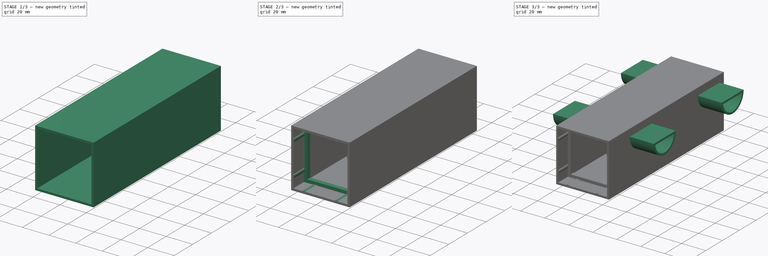
[diagram: build sequence overview — one tinted view per stage of 3, left to right]
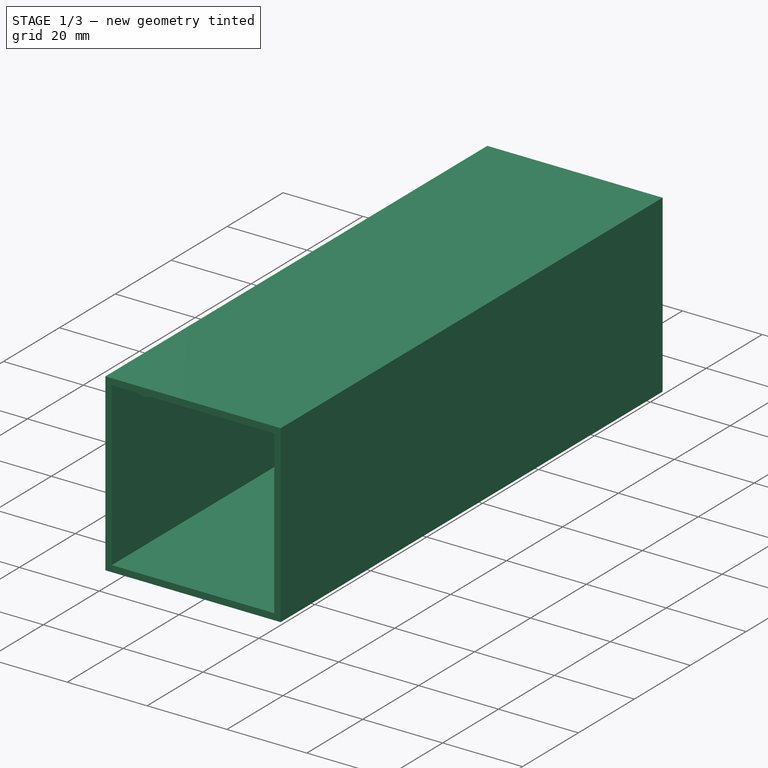
[diagram: stage 1 of 3 — iso view after this stage's code; geometry added in this stage tinted green]
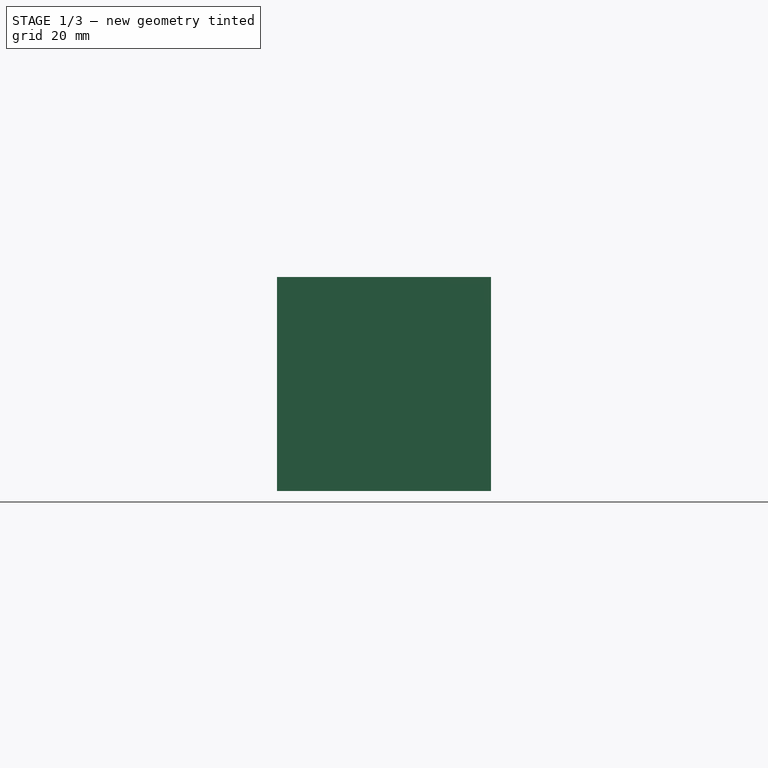
[diagram: stage 1 of 3 — front view after this stage's code; geometry added in this stage tinted green]
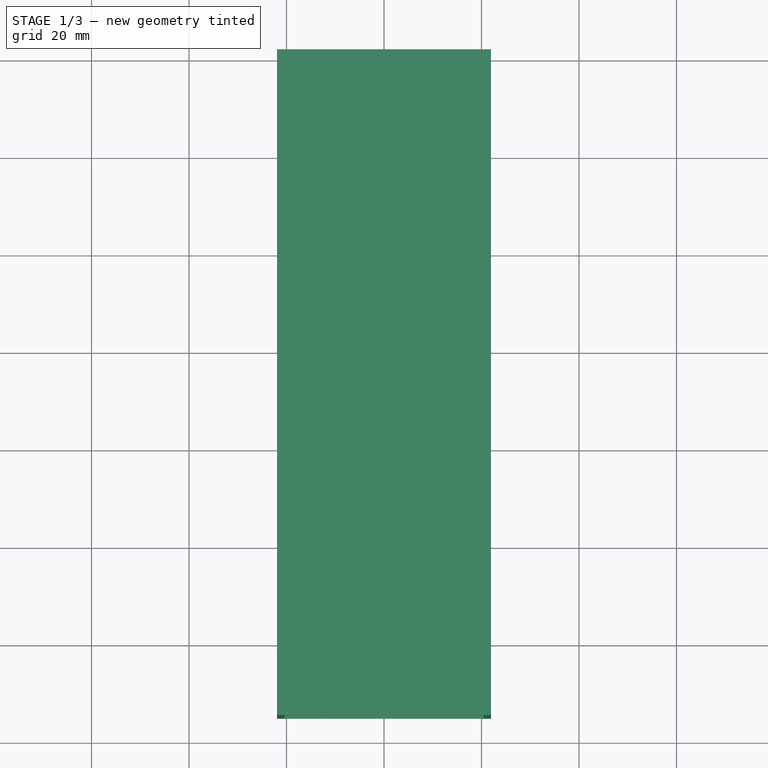
[diagram: stage 1 of 3 — top view after this stage's code; geometry added in this stage tinted green]
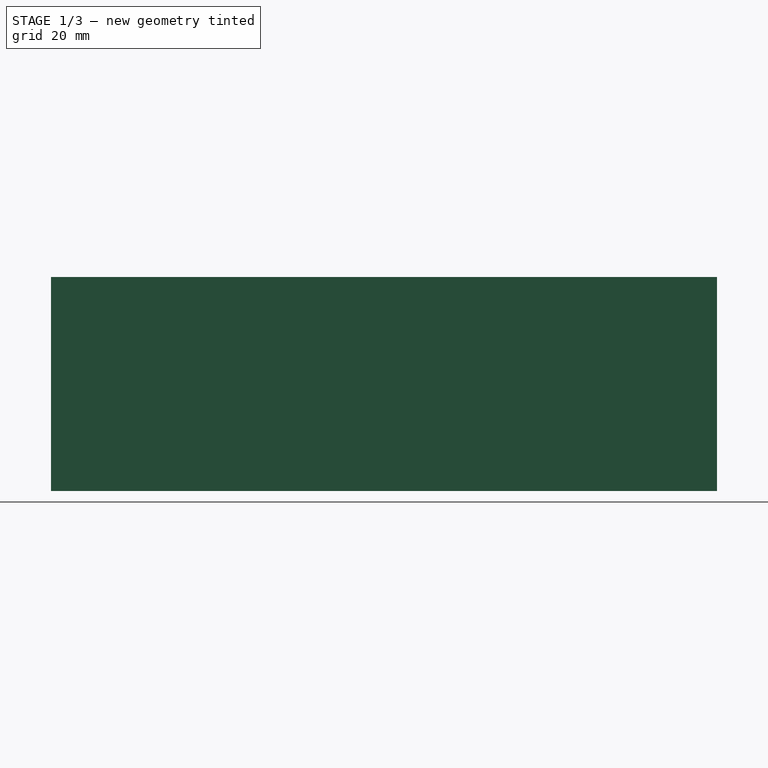
[diagram: stage 1 of 3 — right view after this stage's code; geometry added in this stage tinted green]
FCSTD DOCUMENT  (FreeCAD 1.0R39285 (Git))
Label: bottle_dryer
License: All rights reserved
LicenseURL: https://en.wikipedia.org/wiki/All_rights_reserved
objects: Sketcher::SketchObject×6, PartDesign::Pad×5, PartDesign::Mirrored×2, PartDesign::MultiTransform×2, App::VarSet×1, PartDesign::PolarPattern×1, PartDesign::Pocket×1, PartDesign::LinearPattern×1, PartDesign::Body×1
note: 43 computed .brp shape members not serialized (recipe doc carries the construction recipe); baked Part::Feature solids carry a one-line shape summary decoded from their .brp

FEATURE [Sketcher::SketchObject] Sketch
  ArcFitTolerance = 1e-06
  AttachmentSupport = -> [XZ_Plane]
  FullyConstrained = true
  MakeInternals = false
  MapMode = 5
  Placement = pos=(0,0,0) rot=(1,0,0;1.5708rad)
  expr: Constraints[17] = VarSet.fan_width
  expr: Constraints[19] = VarSet.wall_thickness
  expr: Constraints[20] = VarSet.wall_thickness
  sketch-geometry (8):
    g0: LineSegment StartX=-20.35 StartY=20.35 StartZ=0 EndX=-20.35 EndY=-20.35 EndZ=0
    g1: LineSegment StartX=-20.35 StartY=-20.35 StartZ=0 EndX=20.35 EndY=-20.35 EndZ=0
    g2: LineSegment StartX=20.35 StartY=-20.35 StartZ=0 EndX=20.35 EndY=20.35 EndZ=0
    g3: LineSegment StartX=20.35 StartY=20.35 StartZ=0 EndX=-20.35 EndY=20.35 EndZ=0
    g4: LineSegment StartX=-21.95 StartY=21.95 StartZ=0 EndX=-21.95 EndY=-21.95 EndZ=0
    g5: LineSegment StartX=-21.95 StartY=-21.95 StartZ=0 EndX=21.95 EndY=-21.95 EndZ=0
    g6: LineSegment StartX=21.95 StartY=-21.95 StartZ=0 EndX=21.95 EndY=21.95 EndZ=0
    g7: LineSegment StartX=21.95 StartY=21.95 StartZ=0 EndX=-21.95 EndY=21.95 EndZ=0
  constraints (22):
    c: Coincident(g0,g1)
    c: Coincident(g1,g2)
    c: Coincident(g2,g3)
    c: Coincident(g3,g0)
    c: Vertical(g0)
    c: Vertical(g2)
    c: Horizontal(g1)
    c: Horizontal(g3)
    c: Coincident(g4,g5)
    c: Coincident(g5,g6)
    c: Coincident(g6,g7)
    c: Coincident(g7,g4)
    c: Vertical(g4)
    c: Vertical(g6)
    c: Horizontal(g5)
    c: Horizontal(g7)
    c: Symmetric(g0,g1,g-1)
    c: DistanceX(g3,g3) = 40.7
    c: Equal(g3,g0)
    c: DistanceY(g0,g4) = 1.6
    c: DistanceX(g4,g0) = 1.6
    c: Symmetric(g4,g5,g-1)
FEATURE [App::VarSet] VarSet
  body_length = 135
  bottle_neck_id = 28
  bottle_outer_diameter = 75.692
  bump_amount = 0.5
  bump_pct_from_center = 60
  fan_clearance = 0.2
  fan_thickness = 11.5
  fan_width = 40.7
  fan_width_real = 40
  sm_nozzle_length = 20
  wall_thickness = 1.6
  expr: fan_width = fan_width_real + bump_amount + fan_clearance
FEATURE [PartDesign::Pad] Pad
  Direction = (0,-1,2e-16)
  Length = 135
  Length2 = 10
  Placement = pos=(0,0,0) rot=(1,0,0;1.5708rad)
  Profile = -> Sketch
  ReferenceAxis = -> Sketch [N_Axis]
  Refine = true
  Suppressed = false
  Type = 0
  expr: Length = VarSet.body_length
FEATURE [Sketcher::SketchObject] Sketch001
  ArcFitTolerance = 1e-06
  AttachmentSupport = -> [XZ_Plane]
  FullyConstrained = true
  MakeInternals = false
  MapMode = 5
  Placement = pos=(0,0,0) rot=(1,0,0;1.5708rad)
  expr: Constraints[10] = VarSet.wall_thickness * 2 + VarSet.fan_width
  sketch-geometry (4):
    g0: LineSegment StartX=-21.95 StartY=21.95 StartZ=0 EndX=-21.95 EndY=-21.95 EndZ=0
    g1: LineSegment StartX=-21.95 StartY=-21.95 StartZ=0 EndX=21.95 EndY=-21.95 EndZ=0
    g2: LineSegment StartX=21.95 StartY=-21.95 StartZ=0 EndX=21.95 EndY=21.95 EndZ=0
    g3: LineSegment StartX=21.95 StartY=21.95 StartZ=0 EndX=-21.95 EndY=21.95 EndZ=0
  constraints (11):
    c: Coincident(g0,g1)
    c: Coincident(g1,g2)
    c: Coincident(g2,g3)
    c: Coincident(g3,g0)
    c: Vertical(g0)
    c: Vertical(g2)
    c: Horizontal(g1)
    c: Horizontal(g3)
    c: Symmetric(g0,g1,g-1)
    c: Equal(g3,g0)
    c: DistanceX(g3,g3) = 43.9
FEATURE [PartDesign::Pad] Pad001
  BaseFeature = -> Pad
  Direction = (0,-1,2e-16)
  Length = 1.6
  Length2 = 10
  Placement = pos=(0,0,0) rot=(1,0,0;1.5708rad)
  Profile = -> Sketch001
  ReferenceAxis = -> Sketch001 [N_Axis]
  Refine = true
  Reversed = true
  Suppressed = false
  Type = 0
  expr: Length = VarSet.wall_thickness
FEATURE [Sketcher::SketchObject] Sketch002
  ArcFitTolerance = 1e-06
  AttachmentOffset = pos=(0,0,135) rot=(0,0,1;0rad)
  AttachmentSupport = -> [XZ_Plane]
  FullyConstrained = true
  MakeInternals = false
  MapMode = 5
  Placement = pos=(0,-135,3e-14) rot=(1,0,0;1.5708rad)
  expr: .AttachmentOffset.Base.z = VarSet.body_length
  expr: Constraints[1] = VarSet.fan_width / 2 * VarSet.bump_pct_from_center / 100
  expr: Constraints[2] = VarSet.wall_thickness + VarSet.bump_amount
  expr: Constraints[3] = VarSet.wall_thickness + VarSet.fan_width / 2
  sketch-geometry (2):
    g0: ArcOfCircle CenterX=-12.21 CenterY=21.95 CenterZ=0 NormalX=0 NormalY=0 NormalZ=1 AngleXU=0 Radius=2.1 StartAngle=3.14159 EndAngle=6.28319
    g1: LineSegment StartX=-14.31 StartY=21.95 StartZ=0 EndX=-10.11 EndY=21.95 EndZ=0
  constraints (7):
    c: Angle(g0) = 3.14159
    c: DistanceX(g0,g-1) = 12.21
    c: Radius(g0) = 2.1
    c: DistanceY(g-1,g0) = 21.95
    c: Horizontal(g0,g0)
    c: Coincident(g1,g0)
    c: Coincident(g1,g0)
FEATURE [PartDesign::Pad] Pad002
  BaseFeature = -> Pad001
  Direction = (0,-1,2e-16)
  Length = 11.5
  Length2 = 10
  Placement = pos=(0,0,0) rot=(1,0,0;1.5708rad)
  Profile = -> Sketch002
  ReferenceAxis = -> Sketch002 [N_Axis]
  Refine = true
  Reversed = true
  Suppressed = false
  Type = 0
  expr: Length = VarSet.fan_thickness
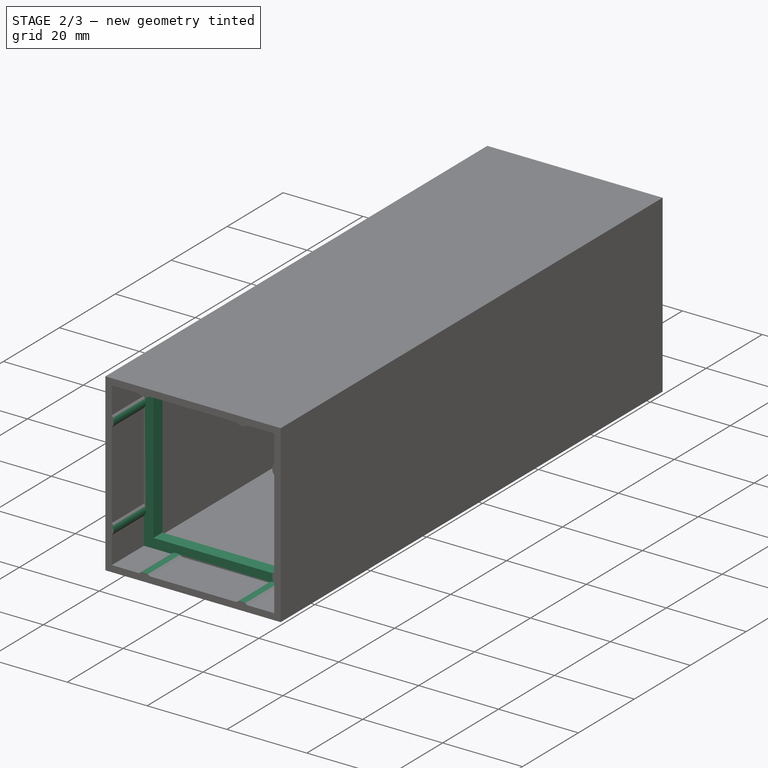
[diagram: stage 2 of 3 — iso view after this stage's code; geometry added in this stage tinted green]
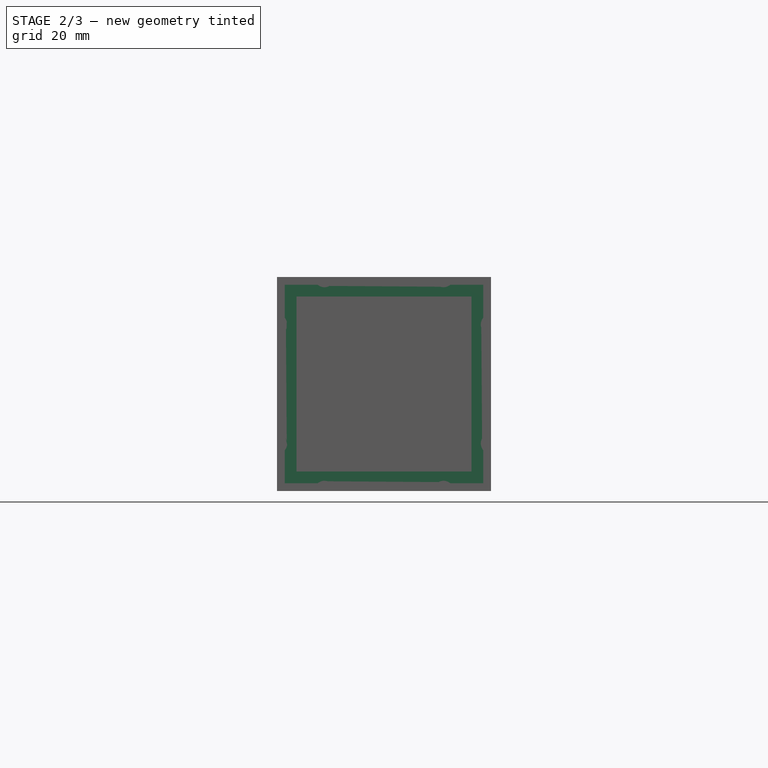
[diagram: stage 2 of 3 — front view after this stage's code; geometry added in this stage tinted green]
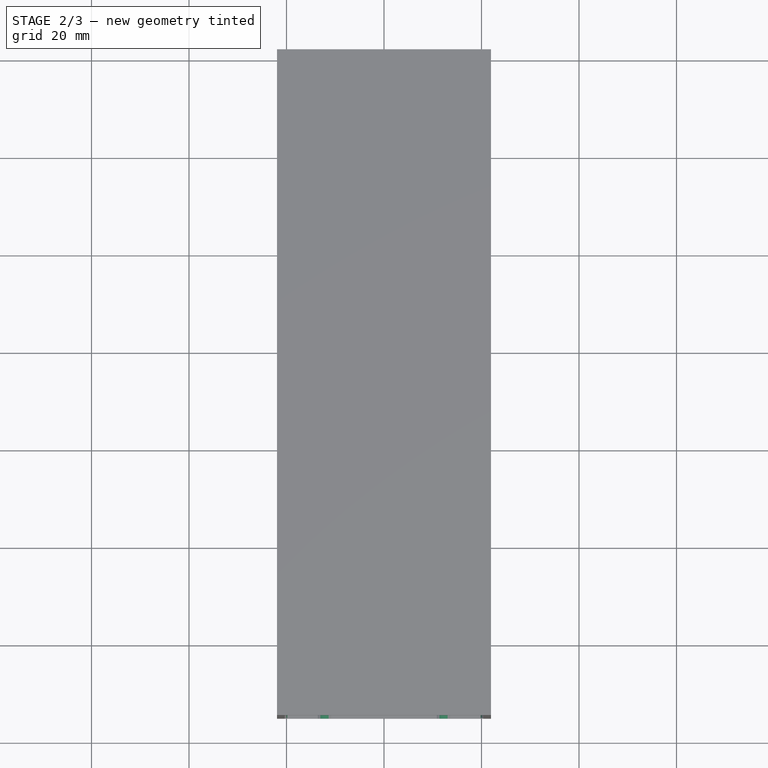
[diagram: stage 2 of 3 — top view after this stage's code; geometry added in this stage tinted green]
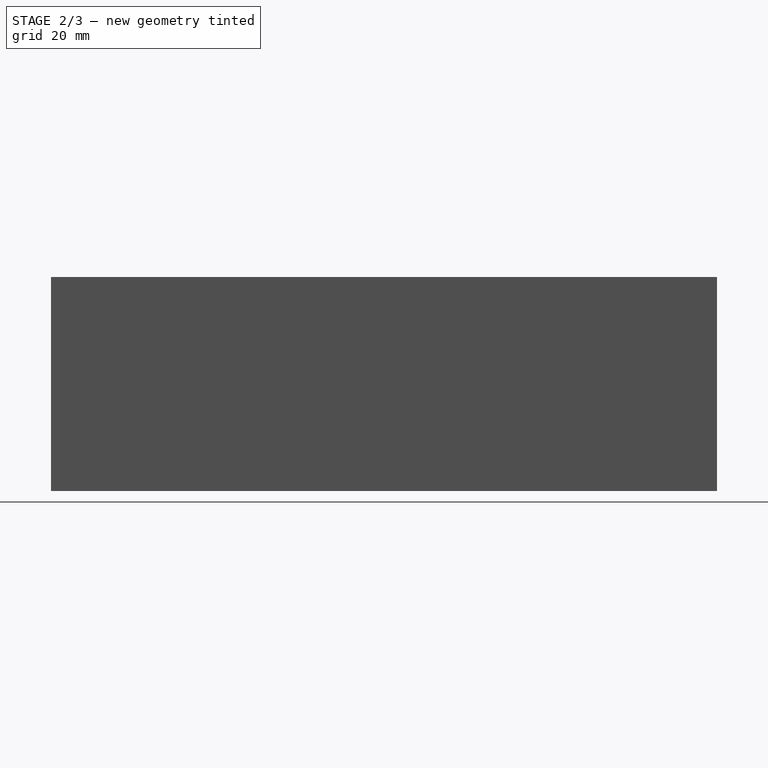
[diagram: stage 2 of 3 — right view after this stage's code; geometry added in this stage tinted green]
FEATURE [PartDesign::PolarPattern] PolarPattern
  Angle = 360
  Axis = -> Sketch002 [N_Axis]
  Mode = 0
  Occurrences = 4
  Offset = 120
  Placement = pos=(0,0,0) rot=(1,0,0;1.5708rad)
  Refine = true
  Suppressed = false
  TransformMode = 0
FEATURE [PartDesign::Mirrored] Mirrored
  MirrorPlane = -> Sketch002 [V_Axis]
  Placement = pos=(0,0,0) rot=(1,0,0;1.5708rad)
  Refine = true
  Suppressed = false
  TransformMode = 0
FEATURE [PartDesign::MultiTransform] MultiTransform
  BaseFeature = -> Pad002
  Originals = -> [Pad002]
  Placement = pos=(0,0,0) rot=(1,0,0;1.5708rad)
  Refine = true
  Suppressed = false
  TransformMode = 0
  Transformations = -> [PolarPattern,Mirrored]
FEATURE [Sketcher::SketchObject] Sketch003
  ArcFitTolerance = 1e-06
  AttachmentOffset = pos=(0,0,123.5) rot=(0,0,1;0rad)
  AttachmentSupport = -> [XZ_Plane]
  FullyConstrained = true
  MakeInternals = false
  MapMode = 5
  Placement = pos=(0,-123.5,2.74e-14) rot=(1,0,0;1.5708rad)
  expr: .AttachmentOffset.Base.z = VarSet.body_length - VarSet.fan_thickness
  expr: Constraints[20] = VarSet.fan_width + VarSet.wall_thickness * 2
  expr: Constraints[21] = VarSet.fan_width - VarSet.wall_thickness * 3
  sketch-geometry (8):
    g0: LineSegment StartX=-21.95 StartY=21.95 StartZ=0 EndX=-21.95 EndY=-21.95 EndZ=0
    g1: LineSegment StartX=-21.95 StartY=-21.95 StartZ=0 EndX=21.95 EndY=-21.95 EndZ=0
    g2: LineSegment StartX=21.95 StartY=-21.95 StartZ=0 EndX=21.95 EndY=21.95 EndZ=0
    g3: LineSegment StartX=21.95 StartY=21.95 StartZ=0 EndX=-21.95 EndY=21.95 EndZ=0
    g4: LineSegment StartX=-17.95 StartY=17.95 StartZ=0 EndX=-17.95 EndY=-17.95 EndZ=0
    g5: LineSegment StartX=-17.95 StartY=-17.95 StartZ=0 EndX=17.95 EndY=-17.95 EndZ=0
    g6: LineSegment StartX=17.95 StartY=-17.95 StartZ=0 EndX=17.95 EndY=17.95 EndZ=0
    g7: LineSegment StartX=17.95 StartY=17.95 StartZ=0 EndX=-17.95 EndY=17.95 EndZ=0
  constraints (22):
    c: Coincident(g0,g1)
    c: Coincident(g1,g2)
    c: Coincident(g2,g3)
    c: Coincident(g3,g0)
    c: Vertical(g0)
    c: Vertical(g2)
    c: Horizontal(g1)
    c: Horizontal(g3)
    c: Coincident(g4,g5)
    c: Coincident(g5,g6)
    c: Coincident(g6,g7)
    c: Coincident(g7,g4)
    c: Vertical(g4)
    c: Vertical(g6)
    c: Horizontal(g5)
    c: Horizontal(g7)
    c: Symmetric(g4,g5,g-1)
    c: Symmetric(g0,g1,g-1)
    c: Equal(g7,g4)
    c: Equal(g3,g0)
    c: DistanceX(g3,g3) = 43.9
    c: DistanceX(g7,g7) = 35.9
FEATURE [PartDesign::Pad] Pad003
  BaseFeature = -> MultiTransform
  Direction = (0,-1,2e-16)
  Length = 3.2
  Length2 = 10
  Placement = pos=(0,0,0) rot=(1,0,0;1.5708rad)
  Profile = -> Sketch003
  ReferenceAxis = -> Sketch003 [N_Axis]
  Refine = true
  Reversed = true
  Suppressed = false
  Type = 0
  expr: Length = VarSet.wall_thickness * 2
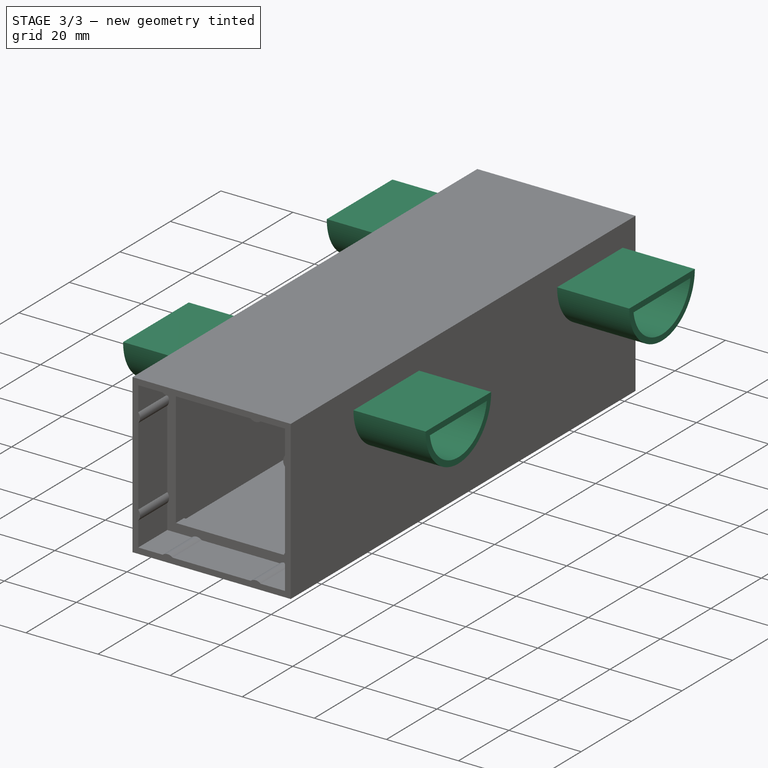
[diagram: stage 3 of 3 — iso view after this stage's code; geometry added in this stage tinted green]
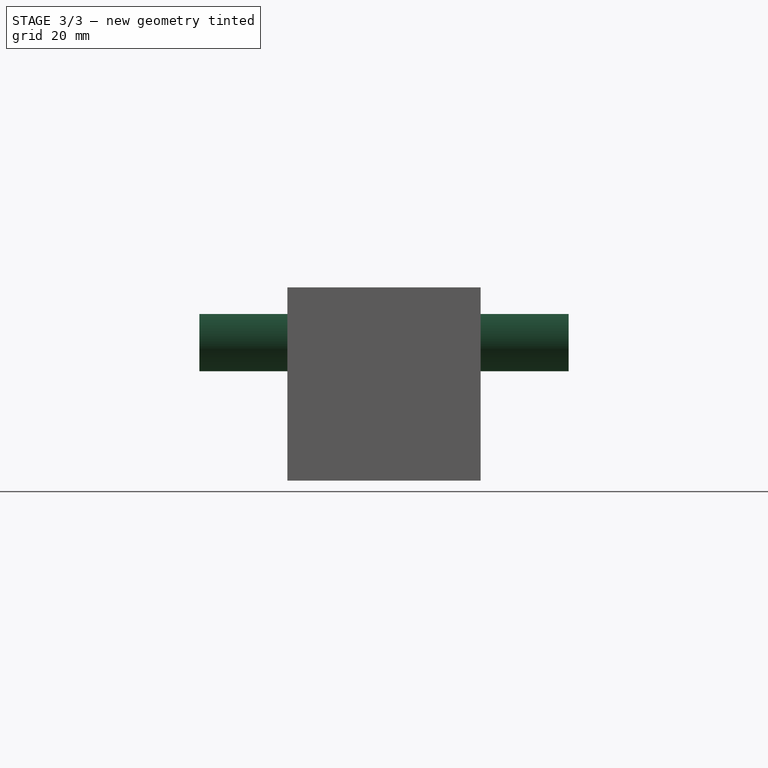
[diagram: stage 3 of 3 — front view after this stage's code; geometry added in this stage tinted green]
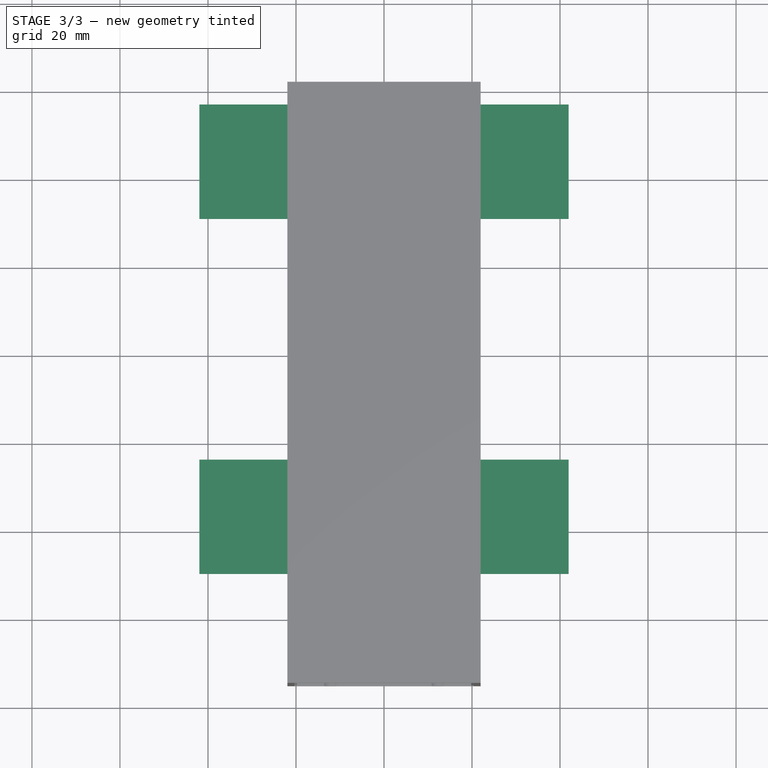
[diagram: stage 3 of 3 — top view after this stage's code; geometry added in this stage tinted green]
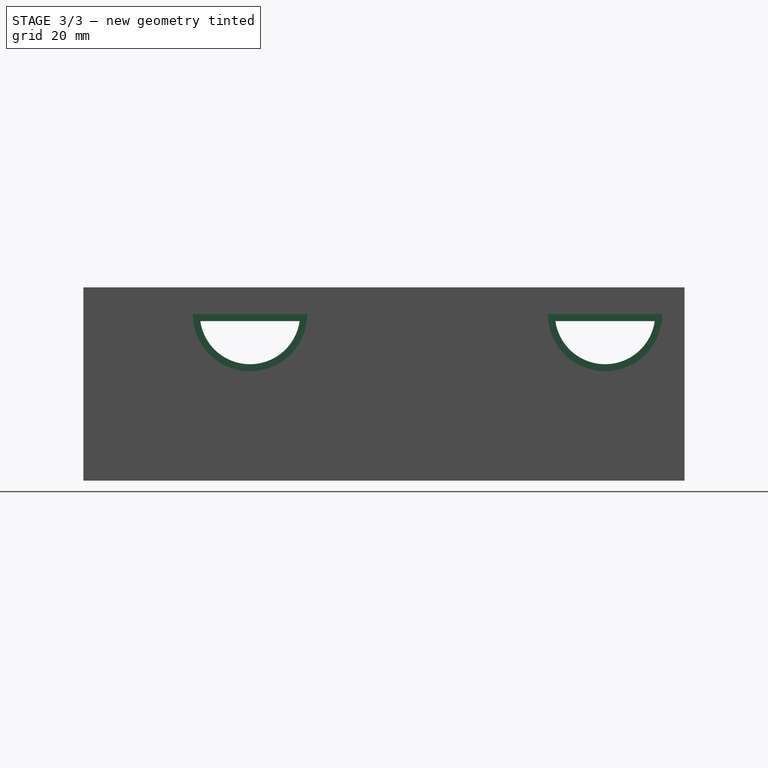
[diagram: stage 3 of 3 — right view after this stage's code; geometry added in this stage tinted green]
FEATURE [Sketcher::SketchObject] Sketch004
  ArcFitTolerance = 1e-06
  AttachmentOffset = pos=(0,0,21.95) rot=(0,0,1;0rad)
  AttachmentSupport = -> [YZ_Plane]
  FullyConstrained = true
  MakeInternals = false
  MapMode = 5
  Placement = pos=(21.95,0,0) rot=(0.57735,0.57735,0.57735;2.0944rad)
  expr: .AttachmentOffset.Base.z = VarSet.fan_width / 2 + VarSet.wall_thickness
  expr: Constraints[0] = VarSet.bottle_outer_diameter
  expr: Constraints[13] = VarSet.body_length - VarSet.bottle_outer_diameter / 2
  expr: Constraints[14] = VarSet.bottle_neck_id - 2 mm
  expr: Constraints[15] = VarSet.bottle_outer_diameter / 2
  expr: Constraints[3] = VarSet.wall_thickness + VarSet.fan_width / 2
  expr: Constraints[4] = VarSet.bottle_outer_diameter / 2
  expr: Constraints[6] = VarSet.bottle_neck_id
  expr: Constraints[7] = VarSet.body_length
  expr: Constraints[8] = VarSet.body_length - VarSet.bottle_outer_diameter / 2
  sketch-geometry (5):
    g0: Circle [constr] CenterX=-97.154 CenterY=15.896 CenterZ=0 NormalX=0 NormalY=0 NormalZ=1 AngleXU=0 Radius=37.846
    g1: LineSegment [constr] StartX=0 StartY=-21.95 StartZ=0 EndX=-135 EndY=-21.95 EndZ=0
    g2: Circle [constr] CenterX=-97.154 CenterY=15.896 CenterZ=0 NormalX=0 NormalY=0 NormalZ=1 AngleXU=0 Radius=14
    g3: ArcOfCircle CenterX=-97.154 CenterY=15.896 CenterZ=0 NormalX=0 NormalY=0 NormalZ=1 AngleXU=0 Radius=13 StartAngle=3.14159 EndAngle=6.28319
    g4: LineSegment StartX=-110.154 StartY=15.896 StartZ=0 EndX=-84.154 EndY=15.896 EndZ=0
  constraints (16):
    c: Diameter(g0) = 75.692
    c: PointOnObject(g1,g-2)
    c: Horizontal(g1)
    c: DistanceY(g1,g-1) = 21.95
    c: DistanceY(g1,g0) = 37.846
    c: Coincident(g2,g0)
    c: Diameter(g2) = 28
    c: DistanceX(g1,g1) = 135
    c: DistanceX(g0,g-1) = 97.154
    c: Angle(g3) = 3.14159
    c: Horizontal(g3,g3)
    c: Coincident(g4,g3)
    c: Coincident(g4,g3)
    c: DistanceX(g3,g-1) = 97.154
    c: Diameter(g3) = 26
    c: DistanceY(g1,g3) = 37.846
FEATURE [PartDesign::Pad] Pad004
  BaseFeature = -> Pad003
  Direction = (1,0,0)
  Length = 20
  Length2 = 10
  Placement = pos=(0,0,0) rot=(1,0,0;1.5708rad)
  Profile = -> Sketch004
  ReferenceAxis = -> Sketch004 [N_Axis]
  Refine = true
  Suppressed = false
  Type = 0
  expr: Length = VarSet.sm_nozzle_length
FEATURE [Sketcher::SketchObject] Sketch005
  ArcFitTolerance = 1e-06
  AttachmentOffset = pos=(0,0,41.95) rot=(0,0,1;0rad)
  AttachmentSupport = -> [YZ_Plane]
  FullyConstrained = true
  MakeInternals = false
  MapMode = 5
  Placement = pos=(41.95,0,0) rot=(0.57735,0.57735,0.57735;2.0944rad)
  expr: .AttachmentOffset.Base.z = VarSet.fan_width / 2 + VarSet.wall_thickness + VarSet.sm_nozzle_length
  expr: Constraints[2] = VarSet.fan_width / 2 + VarSet.wall_thickness
  expr: Constraints[3] = VarSet.body_length
  expr: Constraints[4] = VarSet.bottle_outer_diameter / 2
  expr: Constraints[5] = VarSet.bottle_neck_id - 2 mm - VarSet.wall_thickness * 2
  expr: Constraints[6] = VarSet.body_length - VarSet.bottle_outer_diameter / 2
  expr: Constraints[8] = VarSet.wall_thickness
  sketch-geometry (3):
    g0: ArcOfCircle CenterX=-97.154 CenterY=15.896 CenterZ=0 NormalX=0 NormalY=0 NormalZ=1 AngleXU=0 Radius=11.4 StartAngle=3.28241 EndAngle=6.14237
    g1: LineSegment [constr] StartX=0 StartY=-21.95 StartZ=0 EndX=-135 EndY=-21.95 EndZ=0
    g2: LineSegment StartX=-108.441 StartY=14.296 StartZ=0 EndX=-85.8668 EndY=14.296 EndZ=0
  constraints (11):
    c: PointOnObject(g1,g-2)
    c: Horizontal(g1)
    c: DistanceY(g1,g-1) = 21.95
    c: DistanceX(g1,g1) = 135
    c: DistanceY(g1,g0) = 37.846
    c: Diameter(g0) = 22.8
    c: DistanceX(g0,g-1) = 97.154
    c: Horizontal(g0,g0)
    c: DistanceY(g0,g0) = 1.6
    c: Coincident(g2,g0)
    c: Coincident(g2,g0)
FEATURE [PartDesign::Pocket] Pocket
  BaseFeature = -> Pad004
  Direction = (-1,0,0)
  Length = 5
  Length2 = 5
  Placement = pos=(0,0,0) rot=(1,0,0;1.5708rad)
  Profile = -> Sketch005
  ReferenceAxis = -> Sketch005 [N_Axis]
  Refine = true
  Suppressed = false
  Type = 2
FEATURE [PartDesign::LinearPattern] LinearPattern
  Direction = -> Y_Axis
  Length = 80.692
  Mode = 1
  Occurrences = 2
  Offset = 80.69
  Placement = pos=(0,0,0) rot=(1,0,0;1.5708rad)
  Refine = true
  Suppressed = false
  TransformMode = 0
  expr: Length = VarSet.bottle_outer_diameter + 5 mm
FEATURE [PartDesign::Mirrored] Mirrored001
  MirrorPlane = -> YZ_Plane
  Placement = pos=(0,0,0) rot=(1,0,0;1.5708rad)
  Refine = true
  Suppressed = false
  TransformMode = 0
FEATURE [PartDesign::MultiTransform] MultiTransform001
  BaseFeature = -> Pocket
  Originals = -> [Pad004,Pocket]
  Placement = pos=(0,0,0) rot=(1,0,0;1.5708rad)
  Refine = true
  Suppressed = false
  TransformMode = 0
  Transformations = -> [LinearPattern,Mirrored001]
FEATURE [PartDesign::Body] Body
  AllowCompound = false
  Group = -> [Sketch,Pad,Sketch001,Pad001,Sketch002,Pad002,MultiTransform,PolarPattern,Mirrored,Sketch003,Pad003,Sketch004,Pad004,Sketch005,Pocket,MultiTransform001,LinearPattern,Mirrored001]
  Origin = -> Origin
  Tip = -> MultiTransform001
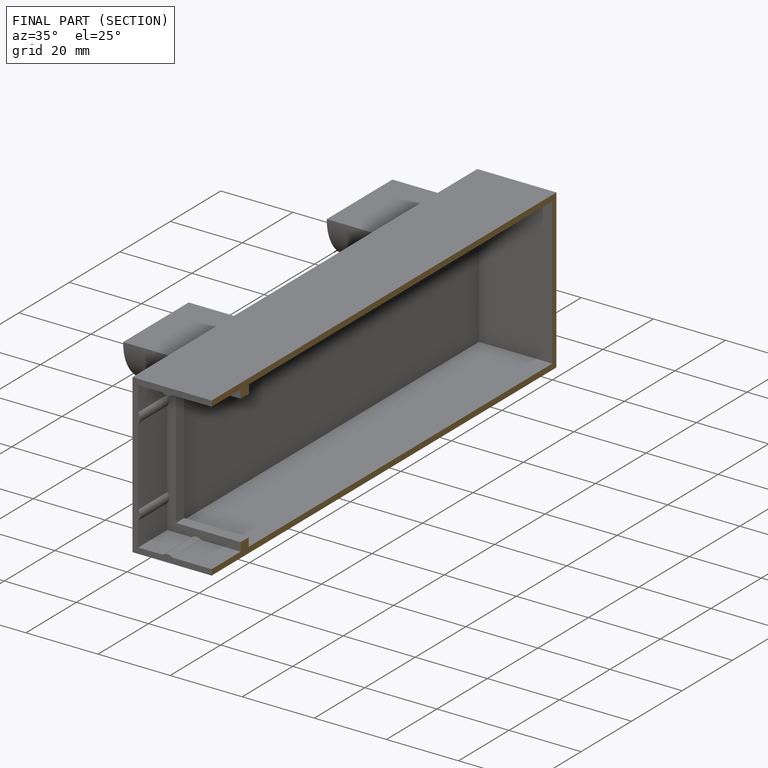
[diagram: finished part — half-section view (interior)]
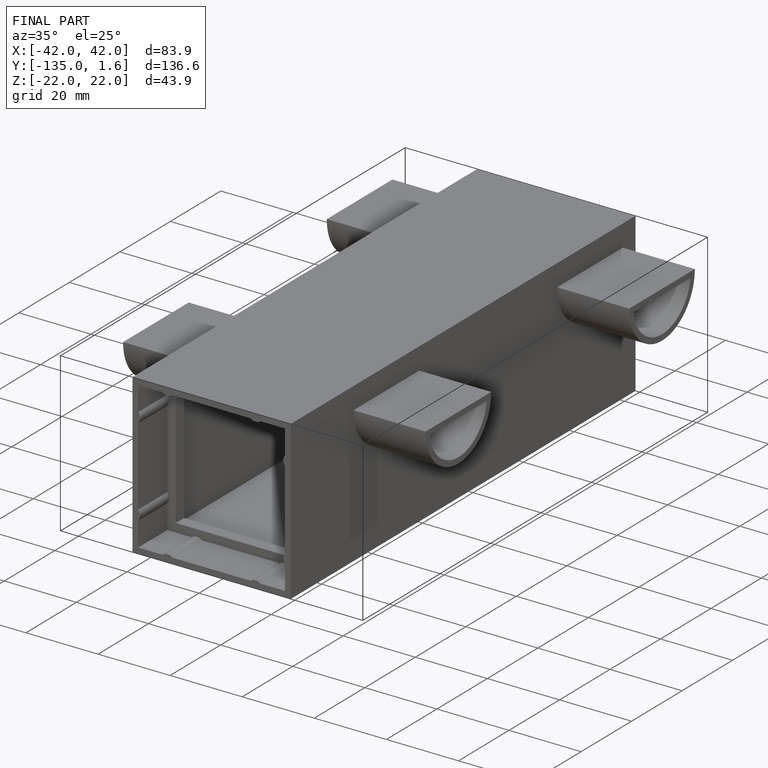
[diagram: finished part — iso view with bounding-box wireframe]
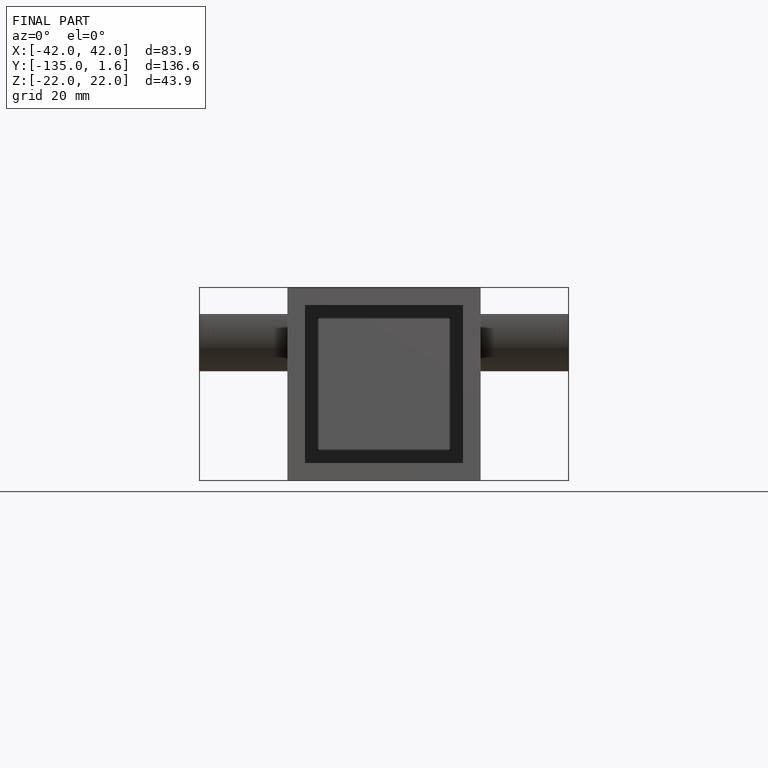
[diagram: finished part — front view with bounding-box wireframe]
